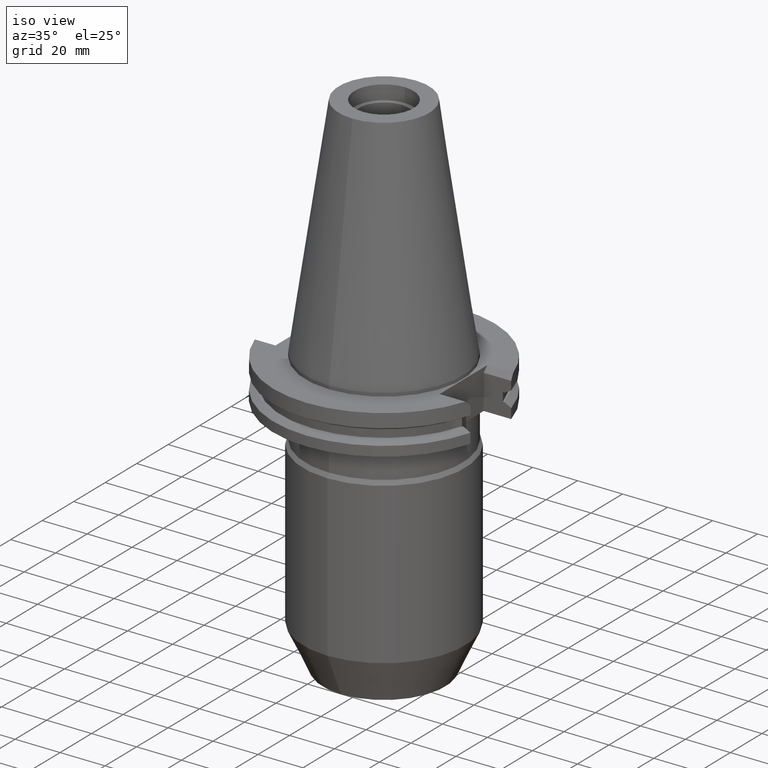
[diagram: clean part render]
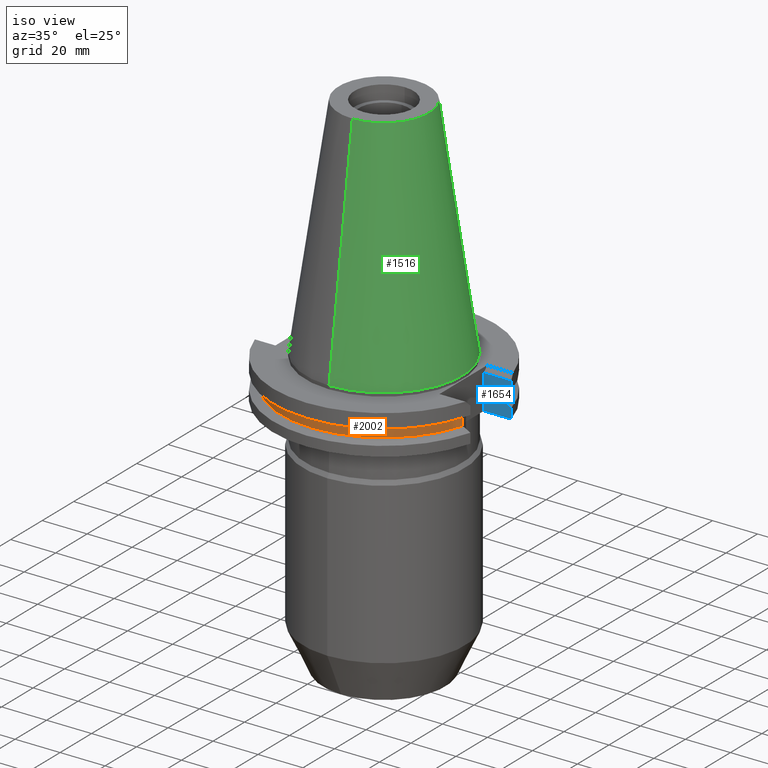
[diagram: same view with three faces highlighted in distinct colors, each labeled with its STEP entity id]
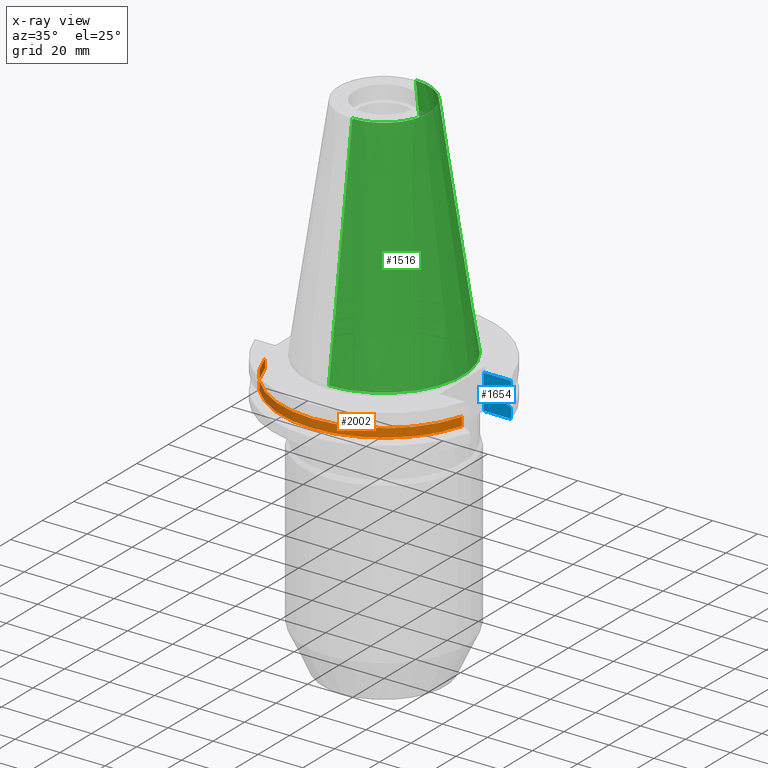
[diagram: x-ray of the same camera — body ghosted, the three highlighted faces saturated]
A machine part, iso view with three faces highlighted in distinct colors.
The next image is the same camera in x-ray (body ghosted, the three faces saturated) — at least one of them is partly hidden behind the body in this view.
Their STEP definitions:

[orange] entity #2002 — the highlighted cylindrical surface (partial cylindrical patch) has radius 45.645 mm, axis along (0, 0, 1).
#690=CARTESIAN_POINT('',(0.E0,0.E0,-9.2075E0));
#691=DIRECTION('',(0.E0,0.E0,-1.E0));
#692=DIRECTION('',(9.588773428655E-1,-2.838207908862E-1,0.E0));
#693=AXIS2_PLACEMENT_3D('',#690,#691,#692);
#698=CARTESIAN_POINT('',(0.E0,0.E0,-9.2075E0));
#699=DIRECTION('',(0.E0,0.E0,-1.E0));
#700=DIRECTION('',(0.E0,-1.E0,0.E0));
#701=AXIS2_PLACEMENT_3D('',#698,#699,#700);
#729=DIRECTION('',(-1.110223024625E-14,0.E0,-1.E0));
#730=VECTOR('',#729,3.84E0);
#731=CARTESIAN_POINT('',(4.376795631509E1,-1.2955E1,-9.2075E0));
#732=LINE('',#731,#730);
#736=DIRECTION('',(0.E0,0.E0,1.E0));
#737=VECTOR('',#736,3.84E0);
#738=CARTESIAN_POINT('',(-4.376795631509E1,-1.2955E1,-1.30475E1));
#739=LINE('',#738,#737);
#766=CARTESIAN_POINT('',(0.E0,0.E0,-1.30475E1));
#767=DIRECTION('',(0.E0,0.E0,1.E0));
#768=DIRECTION('',(-9.588773428655E-1,-2.838207908862E-1,0.E0));
#769=AXIS2_PLACEMENT_3D('',#766,#767,#768);
#774=CARTESIAN_POINT('',(0.E0,0.E0,-1.30475E1));
#775=DIRECTION('',(0.E0,0.E0,1.E0));
#776=DIRECTION('',(0.E0,-1.E0,0.E0));
#777=AXIS2_PLACEMENT_3D('',#774,#775,#776);
#1415=CARTESIAN_POINT('',(4.376795631509E1,-1.2955E1,-1.30475E1));
#1416=VERTEX_POINT('',#1415);
#1417=CARTESIAN_POINT('',(4.376795631509E1,-1.2955E1,-9.2075E0));
#1418=VERTEX_POINT('',#1417);
#1432=CARTESIAN_POINT('',(-4.376795631509E1,-1.2955E1,-9.2075E0));
#1433=VERTEX_POINT('',#1432);
#1434=CARTESIAN_POINT('',(-4.376795631509E1,-1.2955E1,-1.30475E1));
#1435=VERTEX_POINT('',#1434);
#1455=CARTESIAN_POINT('',(-2.461224688054E-14,-4.5645E1,-1.30475E1));
#1456=VERTEX_POINT('',#1455);
#1459=CARTESIAN_POINT('',(2.461224688054E-14,-4.5645E1,-9.2075E0));
#1460=VERTEX_POINT('',#1459);
#1987=CARTESIAN_POINT('',(0.E0,0.E0,-1.3843E2));
#1988=DIRECTION('',(0.E0,0.E0,1.E0));
#1989=DIRECTION('',(0.E0,1.E0,0.E0));
#1990=AXIS2_PLACEMENT_3D('',#1987,#1988,#1989);
#1991=CYLINDRICAL_SURFACE('',#1990,4.5645E1);
#1992=ORIENTED_EDGE('',*,*,#1903,.T.);
#1994=ORIENTED_EDGE('',*,*,#1993,.F.);
#1996=ORIENTED_EDGE('',*,*,#1995,.F.);
#1997=ORIENTED_EDGE('',*,*,#1945,.T.);
#1998=ORIENTED_EDGE('',*,*,#1979,.F.);
#1999=ORIENTED_EDGE('',*,*,#1977,.F.);
#2000=EDGE_LOOP('',(#1992,#1994,#1996,#1997,#1998,#1999));
#2001=FACE_OUTER_BOUND('',#2000,.F.);
#694=CIRCLE('',#693,4.5645E1);
#702=CIRCLE('',#701,4.5645E1);
#770=CIRCLE('',#769,4.5645E1);
#778=CIRCLE('',#777,4.5645E1);
#1903=EDGE_CURVE('',#1418,#1416,#732,.T.);
#1945=EDGE_CURVE('',#1435,#1433,#739,.T.);
#1977=EDGE_CURVE('',#1418,#1460,#694,.T.);
#1979=EDGE_CURVE('',#1460,#1433,#702,.T.);
#1993=EDGE_CURVE('',#1456,#1416,#778,.T.);
#1995=EDGE_CURVE('',#1435,#1456,#770,.T.);
#2002=ADVANCED_FACE('',(#2001),#1991,.T.);

[blue] entity #1654 — the highlighted planar face has unit normal (0, 1, 0).
#198=DIRECTION('',(0.E0,0.E0,-1.E0));
#199=VECTOR('',#198,1.535E1);
#200=CARTESIAN_POINT('',(3.527E1,1.2955E1,-3.7E0));
#201=LINE('',#200,#199);
#205=DIRECTION('',(1.E0,1.469781941986E-14,0.E0));
#206=VECTOR('',#205,1.220671146204E1);
#207=CARTESIAN_POINT('',(3.527E1,1.2955E1,-1.905E1));
#208=LINE('',#207,#206);
#267=DIRECTION('',(1.E0,-3.905892970804E-13,4.274782862491E-13));
#268=VECTOR('',#267,8.186200530381E-1);
#269=CARTESIAN_POINT('',(4.376795631509E1,1.2955E1,-1.30475E1));
#270=LINE('',#269,#268);
#282=DIRECTION('',(-1.E0,-1.469781941986E-14,0.E0));
#283=VECTOR('',#282,1.220671146204E1);
#284=CARTESIAN_POINT('',(4.747671146204E1,1.2955E1,-3.7E0));
#285=LINE('',#284,#283);
#296=DIRECTION('',(-2.622645846769E-13,-3.551499584166E-14,1.E0));
#297=VECTOR('',#296,3.901333230925E0);
#298=CARTESIAN_POINT('',(4.747671146204E1,1.2955E1,-7.601333230925E0));
#299=LINE('',#298,#297);
#383=DIRECTION('',(1.341459893288E-13,4.808244798230E-14,1.E0));
#384=VECTOR('',#383,4.396333230921E0);
#385=CARTESIAN_POINT('',(4.747671146204E1,1.2955E1,-1.905E1));
#386=LINE('',#385,#384);
#397=CARTESIAN_POINT('',(4.747671146204E1,1.2955E1,-1.465366676908E1));
#398=CARTESIAN_POINT('',(4.715593427836E1,1.2955E1,-1.447499824729E1));
#399=CARTESIAN_POINT('',(4.651414584904E1,1.2955E1,-1.411780078678E1));
#400=CARTESIAN_POINT('',(4.555077636708E1,1.2955E1,-1.358239409642E1));
#401=CARTESIAN_POINT('',(4.490806163991E1,1.2955E1,-1.322573823301E1));
#402=CARTESIAN_POINT('',(4.458657636813E1,1.2955E1,-1.30475E1));
#472=DIRECTION('',(0.E0,0.E0,1.E0));
#473=VECTOR('',#472,3.84E0);
#474=CARTESIAN_POINT('',(4.376795631509E1,1.2955E1,-1.30475E1));
#475=LINE('',#474,#473);
#486=DIRECTION('',(1.E0,-2.907720322708E-13,-1.032891696723E-12));
#487=VECTOR('',#486,8.186200530384E-1);
#488=CARTESIAN_POINT('',(4.376795631509E1,1.2955E1,-9.2075E0));
#489=LINE('',#488,#487);
#525=CARTESIAN_POINT('',(4.458657636813E1,1.2955E1,-9.207500000001E0));
#526=CARTESIAN_POINT('',(4.490806163993E1,1.2955E1,-9.029261766981E0));
#527=CARTESIAN_POINT('',(4.555077636711E1,1.2955E1,-8.672605903566E0));
#528=CARTESIAN_POINT('',(4.651414584907E1,1.2955E1,-8.137199213206E0));
#529=CARTESIAN_POINT('',(4.715593427837E1,1.2955E1,-7.780001752702E0));
#530=CARTESIAN_POINT('',(4.747671146204E1,1.2955E1,-7.601333230925E0));
#1294=CARTESIAN_POINT('',(3.527E1,1.2955E1,-1.905E1));
#1296=VERTEX_POINT('',#1294);
#1300=CARTESIAN_POINT('',(3.527E1,1.2955E1,-3.7E0));
#1301=VERTEX_POINT('',#1300);
#1302=CARTESIAN_POINT('',(4.747671146204E1,1.2955E1,-1.905E1));
#1303=VERTEX_POINT('',#1302);
#1386=CARTESIAN_POINT('',(4.747671146204E1,1.2955E1,-3.7E0));
#1387=VERTEX_POINT('',#1386);
#1388=CARTESIAN_POINT('',(4.747671146204E1,1.2955E1,-7.601333230925E0));
#1389=VERTEX_POINT('',#1388);
#1390=VERTEX_POINT('',#525);
#1391=CARTESIAN_POINT('',(4.376795631509E1,1.2955E1,-9.2075E0));
#1392=VERTEX_POINT('',#1391);
#1393=CARTESIAN_POINT('',(4.376795631509E1,1.2955E1,-1.30475E1));
#1394=VERTEX_POINT('',#1393);
#1395=CARTESIAN_POINT('',(4.458657636813E1,1.2955E1,-1.30475E1));
#1396=VERTEX_POINT('',#1395);
#1397=VERTEX_POINT('',#397);
#1629=CARTESIAN_POINT('',(3.527E1,1.2955E1,-1.905E1));
#1630=DIRECTION('',(0.E0,1.E0,0.E0));
#1631=DIRECTION('',(0.E0,0.E0,1.E0));
#1632=AXIS2_PLACEMENT_3D('',#1629,#1630,#1631);
#1633=PLANE('',#1632);
#1634=ORIENTED_EDGE('',*,*,#1602,.F.);
#1635=ORIENTED_EDGE('',*,*,#1591,.F.);
#1637=ORIENTED_EDGE('',*,*,#1636,.F.);
#1639=ORIENTED_EDGE('',*,*,#1638,.F.);
#1641=ORIENTED_EDGE('',*,*,#1640,.F.);
#1643=ORIENTED_EDGE('',*,*,#1642,.F.);
#1645=ORIENTED_EDGE('',*,*,#1644,.F.);
#1647=ORIENTED_EDGE('',*,*,#1646,.T.);
#1649=ORIENTED_EDGE('',*,*,#1648,.F.);
#1651=ORIENTED_EDGE('',*,*,#1650,.F.);
#1652=EDGE_LOOP('',(#1634,#1635,#1637,#1639,#1641,#1643,#1645,#1647,#1649,
#1651));
#1653=FACE_OUTER_BOUND('',#1652,.F.);
#403=B_SPLINE_CURVE_WITH_KNOTS('',3,(#397,#398,#399,#400,#401,#402),
.UNSPECIFIED.,.F.,.F.,(4,1,1,4),(0.E0,3.333333333333E-1,6.666666666667E-1,1.E0),
.UNSPECIFIED.);
#531=B_SPLINE_CURVE_WITH_KNOTS('',3,(#525,#526,#527,#528,#529,#530),
.UNSPECIFIED.,.F.,.F.,(4,1,1,4),(0.E0,3.333333333333E-1,6.666666666667E-1,1.E0),
.UNSPECIFIED.);
#1591=EDGE_CURVE('',#1301,#1296,#201,.T.);
#1602=EDGE_CURVE('',#1296,#1303,#208,.T.);
#1636=EDGE_CURVE('',#1387,#1301,#285,.T.);
#1638=EDGE_CURVE('',#1389,#1387,#299,.T.);
#1640=EDGE_CURVE('',#1390,#1389,#531,.T.);
#1642=EDGE_CURVE('',#1392,#1390,#489,.T.);
#1644=EDGE_CURVE('',#1394,#1392,#475,.T.);
#1646=EDGE_CURVE('',#1394,#1396,#270,.T.);
#1648=EDGE_CURVE('',#1397,#1396,#403,.T.);
#1650=EDGE_CURVE('',#1303,#1397,#386,.T.);
#1654=ADVANCED_FACE('',(#1653),#1633,.F.);

[green] entity #1516 — the highlighted conical surface has half-angle 8.297 deg.
#26=CARTESIAN_POINT('',(0.E0,0.E0,1.016E2));
#27=DIRECTION('',(0.E0,0.E0,-1.E0));
#28=DIRECTION('',(0.E0,1.E0,0.E0));
#29=AXIS2_PLACEMENT_3D('',#26,#27,#28);
#50=DIRECTION('',(0.E0,-1.443069799457E-1,-9.895329683942E-1));
#51=VECTOR('',#50,1.026746993229E2);
#52=CARTESIAN_POINT('',(0.E0,-2.010832422387E1,1.016E2));
#53=LINE('',#52,#51);
#65=DIRECTION('',(0.E0,1.443069799457E-1,-9.895329683942E-1));
#66=VECTOR('',#65,1.026746993229E2);
#67=CARTESIAN_POINT('',(0.E0,2.010832422387E1,1.016E2));
#68=LINE('',#67,#66);
#72=CARTESIAN_POINT('',(0.E0,0.E0,8.242295734817E-13));
#73=DIRECTION('',(0.E0,0.E0,-1.E0));
#74=DIRECTION('',(0.E0,1.E0,0.E0));
#75=AXIS2_PLACEMENT_3D('',#72,#73,#74);
#1258=CARTESIAN_POINT('',(0.E0,-2.010832422388E1,1.016E2));
#1259=CARTESIAN_POINT('',(0.E0,2.010832422388E1,1.016E2));
#1260=VERTEX_POINT('',#1258);
#1261=VERTEX_POINT('',#1259);
#1266=CARTESIAN_POINT('',(0.E0,3.4925E1,5.542233338929E-13));
#1267=VERTEX_POINT('',#1266);
#1268=CARTESIAN_POINT('',(0.E0,-3.4925E1,5.542233338929E-13));
#1269=VERTEX_POINT('',#1268);
#1504=CARTESIAN_POINT('',(0.E0,0.E0,5.08E1));
#1505=DIRECTION('',(0.E0,0.E0,-1.E0));
#1506=DIRECTION('',(0.E0,-1.E0,0.E0));
#1507=AXIS2_PLACEMENT_3D('',#1504,#1505,#1506);
#1508=CONICAL_SURFACE('',#1507,2.751666211194E1,8.29715E0);
#1509=ORIENTED_EDGE('',*,*,#1494,.T.);
#1511=ORIENTED_EDGE('',*,*,#1510,.T.);
#1512=ORIENTED_EDGE('',*,*,#1497,.F.);
#1513=ORIENTED_EDGE('',*,*,#1478,.F.);
#1514=EDGE_LOOP('',(#1509,#1511,#1512,#1513));
#1515=FACE_OUTER_BOUND('',#1514,.F.);
#30=CIRCLE('',#29,2.010832422388E1);
#76=CIRCLE('',#75,3.4925E1);
#1478=EDGE_CURVE('',#1261,#1260,#30,.T.);
#1494=EDGE_CURVE('',#1261,#1267,#68,.T.);
#1497=EDGE_CURVE('',#1260,#1269,#53,.T.);
#1510=EDGE_CURVE('',#1267,#1269,#76,.T.);
#1516=ADVANCED_FACE('',(#1515),#1508,.T.);